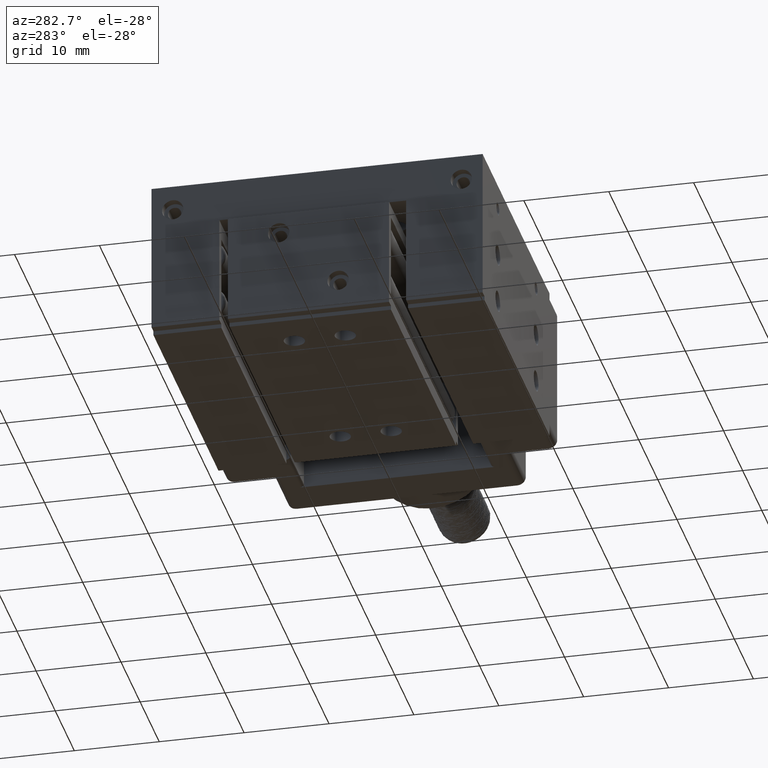
[diagram: clean part render]
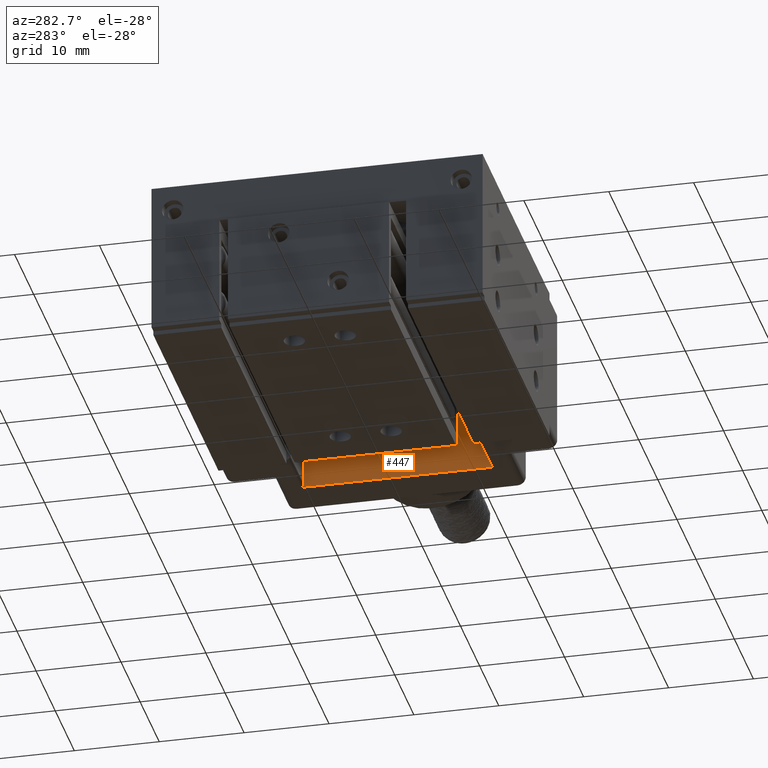
[diagram: same view with one face highlighted and labeled with its STEP entity id]
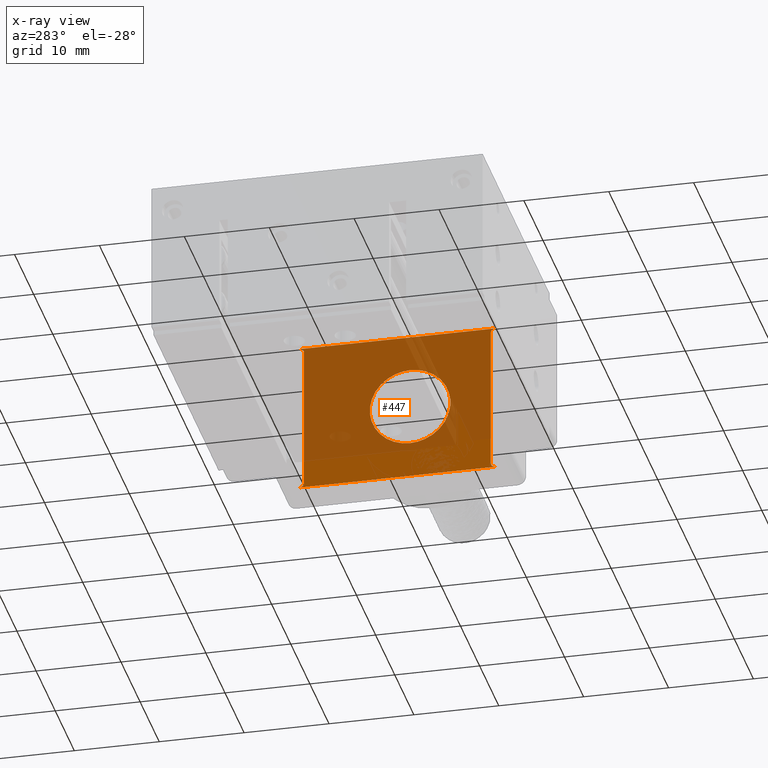
[diagram: x-ray of the same camera — body ghosted, the highlighted face saturated]
A machine part, auxiliary view. The second image highlights one B-rep face of the part: STEP entity #447.
The next image is the same camera in x-ray: the body ghosted, the highlighted face saturated — about 76% of this face is hidden behind the body in this view.
In plain terms, the highlighted planar face has unit normal (-1, 0, 0).
Its self-contained STEP definition (entity closure, byte-faithful):
#447=ADVANCED_FACE('',(#1033,#601),#8574,.T.);
#601=FACE_BOUND('',#1613,.T.);
#1033=FACE_OUTER_BOUND('',#1612,.T.);
#1612=EDGE_LOOP('',(#4078,#4079,#4080,#4081,#4082,#4083,#4084,#4085));
#1613=EDGE_LOOP('',(#4086,#4087));
#4078=ORIENTED_EDGE('',*,*,#5598,.F.);
#4079=ORIENTED_EDGE('',*,*,#5608,.T.);
#4080=ORIENTED_EDGE('',*,*,#5606,.F.);
#4081=ORIENTED_EDGE('',*,*,#5580,.T.);
#4082=ORIENTED_EDGE('',*,*,#5610,.F.);
#4083=ORIENTED_EDGE('',*,*,#5603,.T.);
#4084=ORIENTED_EDGE('',*,*,#5600,.F.);
#4085=ORIENTED_EDGE('',*,*,#5562,.F.);
#4086=ORIENTED_EDGE('',*,*,#5731,.T.);
#4087=ORIENTED_EDGE('',*,*,#5888,.T.);
#5562=EDGE_CURVE('',#7937,#7938,#7163,.T.);
#5580=EDGE_CURVE('',#7951,#7950,#7179,.T.);
#5598=EDGE_CURVE('',#7957,#7937,#6162,.T.);
#5600=EDGE_CURVE('',#7938,#7959,#6164,.T.);
#5603=EDGE_CURVE('',#7960,#7959,#7190,.T.);
#5606=EDGE_CURVE('',#7951,#7961,#6166,.T.);
#5608=EDGE_CURVE('',#7957,#7961,#7193,.T.);
#5610=EDGE_CURVE('',#7960,#7950,#6168,.T.);
#5731=EDGE_CURVE('',#7964,#8086,#6251,.T.);
#5888=EDGE_CURVE('',#8086,#7964,#6346,.T.);
#6162=(
BOUNDED_CURVE()
B_SPLINE_CURVE(2,(#42625,#42626,#42627),.UNSPECIFIED.,.F.,.F.)
B_SPLINE_CURVE_WITH_KNOTS((3,3),(0.,0.785398163397458),.UNSPECIFIED.)
CURVE()
GEOMETRIC_REPRESENTATION_ITEM()
RATIONAL_B_SPLINE_CURVE((1.,0.70710678118654,1.))
REPRESENTATION_ITEM('')
);
#6164=(
BOUNDED_CURVE()
B_SPLINE_CURVE(2,(#42631,#42632,#42633),.UNSPECIFIED.,.F.,.F.)
B_SPLINE_CURVE_WITH_KNOTS((3,3),(0.,0.785398163397439),.UNSPECIFIED.)
CURVE()
GEOMETRIC_REPRESENTATION_ITEM()
RATIONAL_B_SPLINE_CURVE((1.,0.707106781186555,1.))
REPRESENTATION_ITEM('')
);
#6166=(
BOUNDED_CURVE()
B_SPLINE_CURVE(2,(#42645,#42646,#42647),.UNSPECIFIED.,.F.,.F.)
B_SPLINE_CURVE_WITH_KNOTS((3,3),(0.,0.785398163397448),.UNSPECIFIED.)
CURVE()
GEOMETRIC_REPRESENTATION_ITEM()
RATIONAL_B_SPLINE_CURVE((1.,0.707106781186548,1.))
REPRESENTATION_ITEM('')
);
#6168=(
BOUNDED_CURVE()
B_SPLINE_CURVE(2,(#42655,#42656,#42657),.UNSPECIFIED.,.F.,.F.)
B_SPLINE_CURVE_WITH_KNOTS((3,3),(0.,0.785398163397439),.UNSPECIFIED.)
CURVE()
GEOMETRIC_REPRESENTATION_ITEM()
RATIONAL_B_SPLINE_CURVE((1.,0.707106781186554,1.))
REPRESENTATION_ITEM('')
);
#6251=(
BOUNDED_CURVE()
B_SPLINE_CURVE(2,(#43672,#43673,#43674,#43675,#43676),.UNSPECIFIED.,.F.,
 .F.)
B_SPLINE_CURVE_WITH_KNOTS((3,2,3),(-7.46128255227575,0.,7.46128255227577),
 .UNSPECIFIED.)
CURVE()
GEOMETRIC_REPRESENTATION_ITEM()
RATIONAL_B_SPLINE_CURVE((1.,0.70710678118655,1.,0.707106781186547,1.))
REPRESENTATION_ITEM('')
);
#6346=(
BOUNDED_CURVE()
B_SPLINE_CURVE(2,(#44554,#44555,#44556,#44557,#44558),.UNSPECIFIED.,.F.,
 .F.)
B_SPLINE_CURVE_WITH_KNOTS((3,2,3),(7.46128255227577,14.9225651045515,22.3838476568273),
 .UNSPECIFIED.)
CURVE()
GEOMETRIC_REPRESENTATION_ITEM()
RATIONAL_B_SPLINE_CURVE((1.,0.707106781186547,1.,0.707106781186545,1.))
REPRESENTATION_ITEM('')
);
#7163=B_SPLINE_CURVE_WITH_KNOTS('',1,(#42542,#42543),.UNSPECIFIED.,.F.,
 .F.,(2,2),(0.,23.),.UNSPECIFIED.);
#7179=B_SPLINE_CURVE_WITH_KNOTS('',1,(#42580,#42581),.UNSPECIFIED.,.F.,
 .F.,(2,2),(-23.,0.),.UNSPECIFIED.);
#7190=B_SPLINE_CURVE_WITH_KNOTS('',1,(#42638,#42639),.UNSPECIFIED.,.F.,
 .F.,(2,2),(-17.,0.),.UNSPECIFIED.);
#7193=B_SPLINE_CURVE_WITH_KNOTS('',1,(#42650,#42651),.UNSPECIFIED.,.F.,
 .F.,(2,2),(-17.,0.),.UNSPECIFIED.);
#7937=VERTEX_POINT('',#28803);
#7938=VERTEX_POINT('',#28804);
#7950=VERTEX_POINT('',#28816);
#7951=VERTEX_POINT('',#28817);
#7957=VERTEX_POINT('',#28823);
#7959=VERTEX_POINT('',#28825);
#7960=VERTEX_POINT('',#28826);
#7961=VERTEX_POINT('',#28827);
#7964=VERTEX_POINT('',#28830);
#8086=VERTEX_POINT('',#28952);
#8574=PLANE('',#8954);
#8954=AXIS2_PLACEMENT_3D('',#27620,#9355,$);
#9355=DIRECTION('',(-1.,0.,0.));
#27620=CARTESIAN_POINT('',(7.00000081075875,-13.9199999944688,20.920045539551));
#28803=CARTESIAN_POINT('',(7.00000081075865,-11.4999999944685,1.00004553955077));
#28804=CARTESIAN_POINT('',(7.00000081075875,11.5000000055316,1.00004553955096));
#28816=CARTESIAN_POINT('',(7.00000081075875,11.5000000055314,19.000045539551));
#28817=CARTESIAN_POINT('',(7.00000081075875,-11.4999999944686,19.0000455395508));
#28823=CARTESIAN_POINT('',(7.00000081075865,-10.9999999944685,1.50004553955078));
#28825=CARTESIAN_POINT('',(7.00000081075875,11.0000000055316,1.50004553955095));
#28826=CARTESIAN_POINT('',(7.00000081075875,11.0000000055314,18.500045539551));
#28827=CARTESIAN_POINT('',(7.00000081075875,-10.9999999944686,18.5000455395508));
#28830=CARTESIAN_POINT('',(7.00000081075877,-1.49999999446852,14.7500455395509));
#28952=CARTESIAN_POINT('',(7.00000081075875,-1.49999999446844,5.25004553955085));
#42542=CARTESIAN_POINT('',(7.00000081075865,-11.4999999944685,1.00004553955077));
#42543=CARTESIAN_POINT('',(7.00000081075875,11.5000000055316,1.00004553955096));
#42580=CARTESIAN_POINT('',(7.00000081075875,-11.4999999944686,19.0000455395508));
#42581=CARTESIAN_POINT('',(7.00000081075875,11.5000000055314,19.000045539551));
#42625=CARTESIAN_POINT('',(7.00000081075865,-10.9999999944685,1.50004553955078));
#42626=CARTESIAN_POINT('',(7.00000081075865,-10.9999999944685,1.00004553955077));
#42627=CARTESIAN_POINT('',(7.00000081075865,-11.4999999944685,1.00004553955077));
#42631=CARTESIAN_POINT('',(7.00000081075875,11.5000000055316,1.00004553955096));
#42632=CARTESIAN_POINT('',(7.00000081075875,11.0000000055316,1.00004553955096));
#42633=CARTESIAN_POINT('',(7.00000081075875,11.0000000055316,1.50004553955095));
#42638=CARTESIAN_POINT('',(7.00000081075875,11.0000000055314,18.500045539551));
#42639=CARTESIAN_POINT('',(7.00000081075875,11.0000000055316,1.50004553955095));
#42645=CARTESIAN_POINT('',(7.00000081075875,-11.4999999944686,19.0000455395508));
#42646=CARTESIAN_POINT('',(7.00000081075875,-10.9999999944686,19.0000455395508));
#42647=CARTESIAN_POINT('',(7.00000081075875,-10.9999999944686,18.5000455395508));
#42650=CARTESIAN_POINT('',(7.00000081075865,-10.9999999944685,1.50004553955078));
#42651=CARTESIAN_POINT('',(7.00000081075875,-10.9999999944686,18.5000455395508));
#42655=CARTESIAN_POINT('',(7.00000081075875,11.0000000055314,18.500045539551));
#42656=CARTESIAN_POINT('',(7.00000081075875,11.0000000055314,19.000045539551));
#42657=CARTESIAN_POINT('',(7.00000081075875,11.5000000055314,19.000045539551));
#43672=CARTESIAN_POINT('',(7.00000081075876,-1.49999999446852,14.7500455395509));
#43673=CARTESIAN_POINT('',(7.00000081075877,-6.2499999944685,14.7500455395508));
#43674=CARTESIAN_POINT('',(7.00000081075876,-6.24999999446847,10.0000455395508));
#43675=CARTESIAN_POINT('',(7.00000081075875,-6.24999999446844,5.25004553955081));
#43676=CARTESIAN_POINT('',(7.00000081075875,-1.49999999446844,5.25004553955085));
#44554=CARTESIAN_POINT('',(7.00000081075875,-1.49999999446844,5.25004553955085));
#44555=CARTESIAN_POINT('',(7.00000081075875,3.25000000553156,5.25004553955089));
#44556=CARTESIAN_POINT('',(7.00000081075876,3.25000000553152,10.0000455395509));
#44557=CARTESIAN_POINT('',(7.00000081075876,3.2500000055315,14.7500455395509));
#44558=CARTESIAN_POINT('',(7.00000081075877,-1.49999999446852,14.7500455395509));